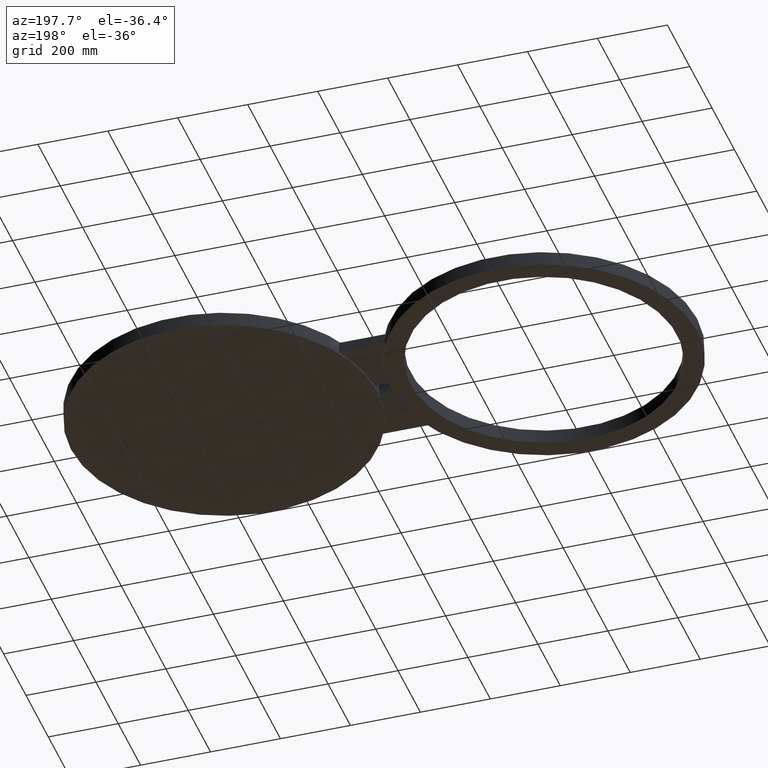
[diagram: clean part render]
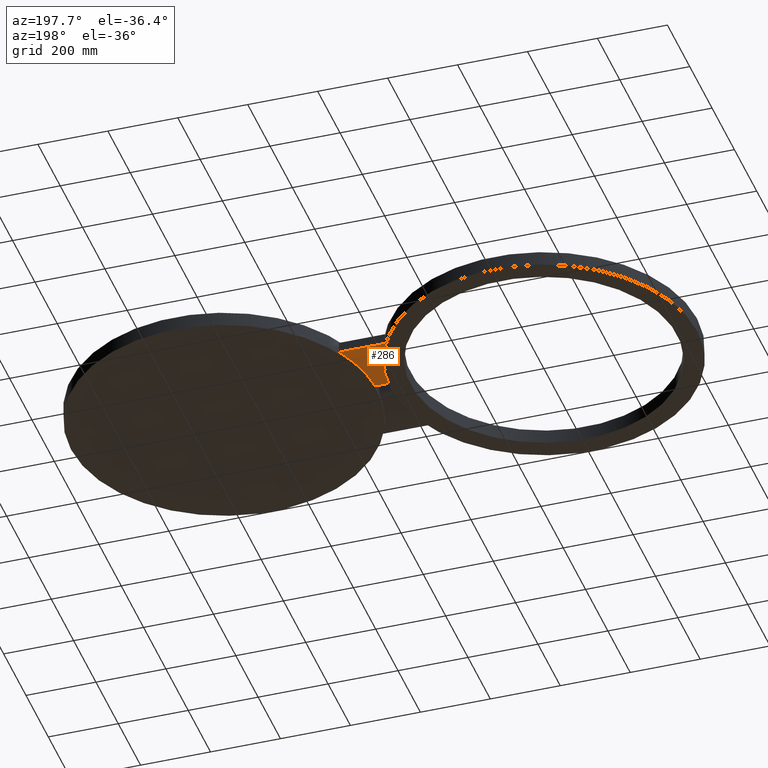
[diagram: same view with one face highlighted and labeled with its STEP entity id]
A machine part, auxiliary view. The second image highlights one B-rep face of the part: STEP entity #286.
In plain terms, the highlighted planar face has unit normal (0, 0, 1).
Its self-contained STEP definition (entity closure, byte-faithful):
#259=AXIS2_PLACEMENT_3D('Plane Axis2P3D',#256,#257,#258) ;
#272=AXIS2_PLACEMENT_3D('Circle Axis2P3D',#270,#271,$) ;
#277=AXIS2_PLACEMENT_3D('Circle Axis2P3D',#275,#276,$) ;
#225=CARTESIAN_POINT('Vertex',(20.5889649927,7.75000000003,-0.609375000002)) ;
#230=CARTESIAN_POINT('Line Origine',(18.0000000001,7.75000000003,-0.609375000002)) ;
#234=CARTESIAN_POINT('Vertex',(15.4110350075,7.75000000003,-0.609375000002)) ;
#256=CARTESIAN_POINT('Axis2P3D Location',(0.,0.,-0.609375000002)) ;
#261=CARTESIAN_POINT('Line Origine',(18.0000000001,0.750000000003,-0.609375000002)) ;
#265=CARTESIAN_POINT('Vertex',(17.2336879397,0.750000000003,-0.609375000002)) ;
#267=CARTESIAN_POINT('Vertex',(18.7663120605,0.750000000003,-0.609375000002)) ;
#270=CARTESIAN_POINT('Axis2P3D Location',(-6.04241066631E-014,-1.73439565422E-014,-0.609375000002)) ;
#275=CARTESIAN_POINT('Axis2P3D Location',(36.0000000001,7.83275456743E-015,-0.609375000002)) ;
#231=DIRECTION('Vector Direction',(-0.0393700787402,0.,0.)) ;
#257=DIRECTION('Axis2P3D Direction',(0.,0.,0.0393700787402)) ;
#258=DIRECTION('Axis2P3D XDirection',(0.0393700787402,0.,0.)) ;
#262=DIRECTION('Vector Direction',(0.0393700787402,0.,0.)) ;
#271=DIRECTION('Axis2P3D Direction',(0.,0.,0.0393700787402)) ;
#276=DIRECTION('Axis2P3D Direction',(0.,0.,0.0393700787402)) ;
#232=VECTOR('Line Direction',#231,0.0393700787402) ;
#263=VECTOR('Line Direction',#262,0.0393700787402) ;
#281=ORIENTED_EDGE('',*,*,#269,.F.) ;
#282=ORIENTED_EDGE('',*,*,#274,.T.) ;
#283=ORIENTED_EDGE('',*,*,#236,.F.) ;
#284=ORIENTED_EDGE('',*,*,#279,.T.) ;
#286=ADVANCED_FACE('PartBody',(#285),#260,.F.) ;
#273=CIRCLE('generated circle',#272,17.2500000001) ;
#278=CIRCLE('generated circle',#277,17.2500000001) ;
#236=EDGE_CURVE('',#226,#235,#233,.T.) ;
#269=EDGE_CURVE('',#266,#268,#264,.T.) ;
#274=EDGE_CURVE('',#266,#235,#273,.T.) ;
#279=EDGE_CURVE('',#226,#268,#278,.T.) ;
#280=EDGE_LOOP('',(#281,#282,#283,#284)) ;
#285=FACE_OUTER_BOUND('',#280,.T.) ;
#233=LINE('Line',#230,#232) ;
#264=LINE('Line',#261,#263) ;
#260=PLANE('',#259) ;
#226=VERTEX_POINT('',#225) ;
#235=VERTEX_POINT('',#234) ;
#266=VERTEX_POINT('',#265) ;
#268=VERTEX_POINT('',#267) ;